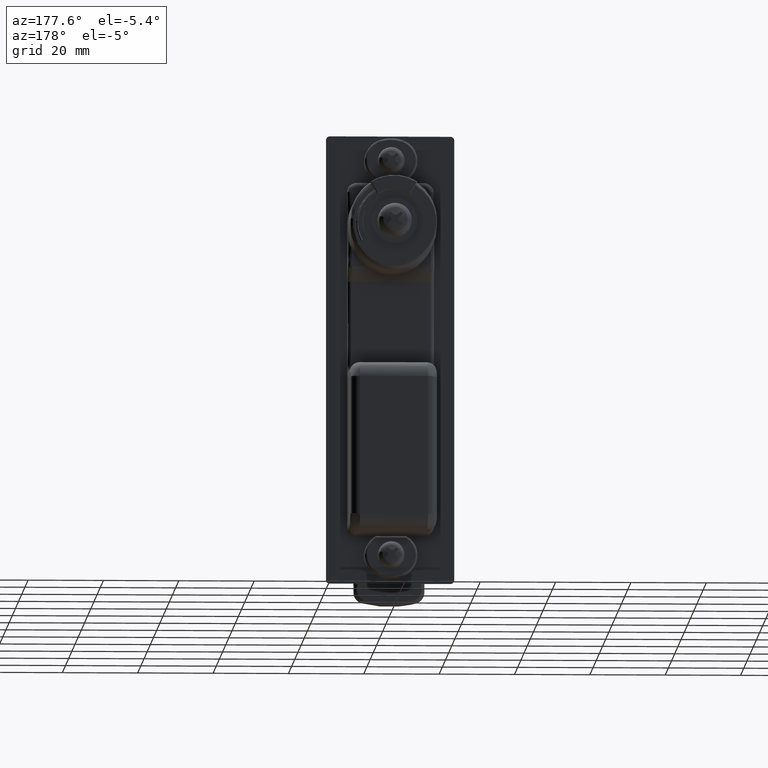
[diagram: clean part render]
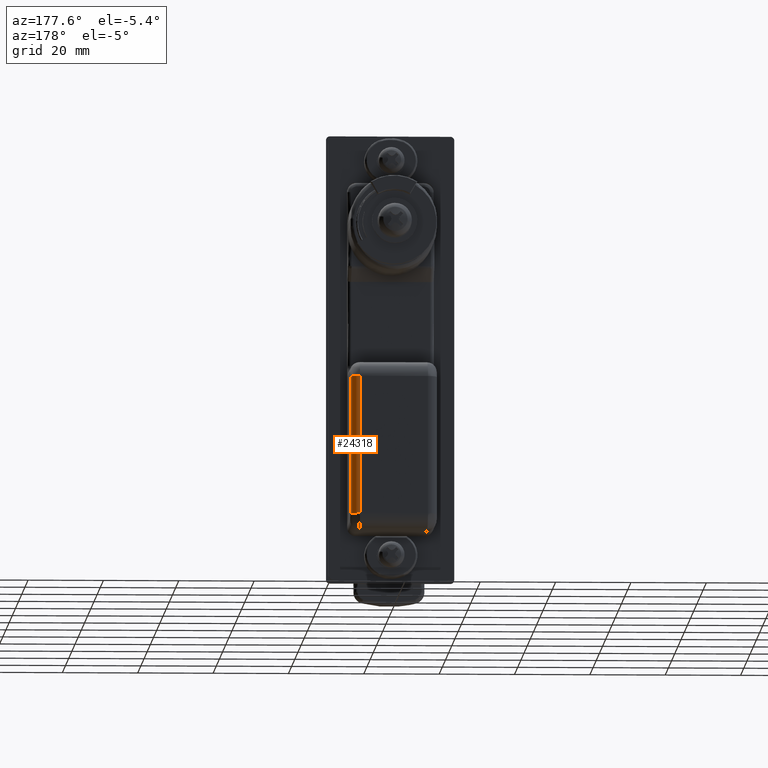
[diagram: same view with one face highlighted and labeled with its STEP entity id]
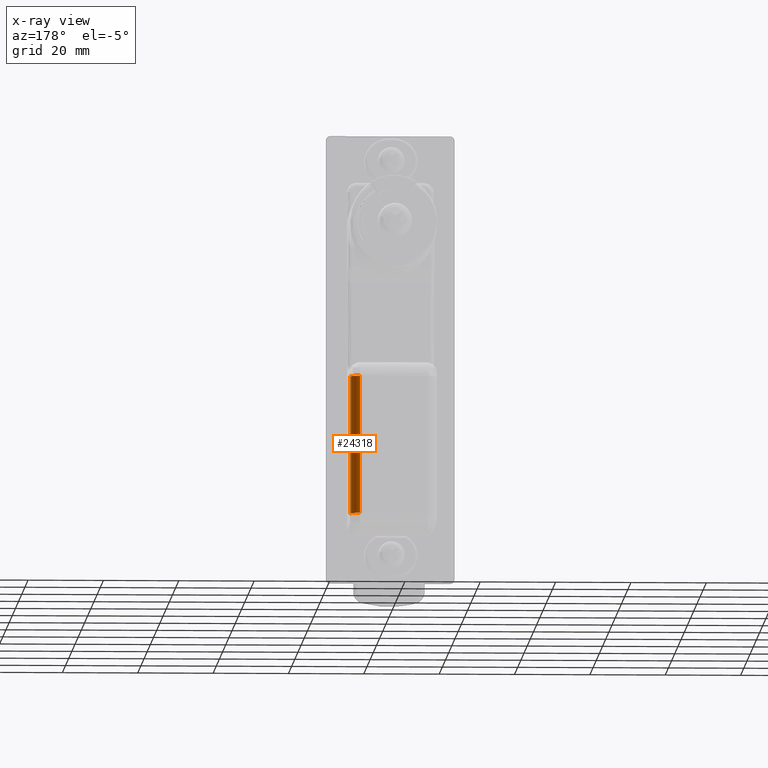
[diagram: x-ray of the same camera — body ghosted, the highlighted face saturated]
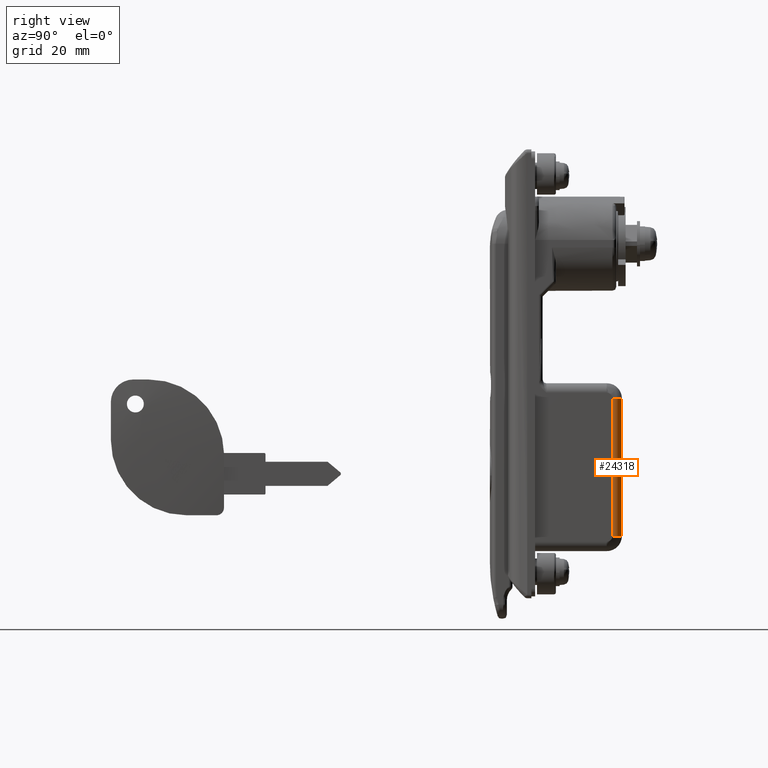
[diagram: same view with one face highlighted and labeled with its STEP entity id]
A machine part, auxiliary view. The second image highlights one B-rep face of the part: STEP entity #24318.
The next image is the same camera in x-ray: the body ghosted, the highlighted face saturated — about 0% of this face is hidden behind the body in this view.
A second angle (right view) of the same face is appended — the face is thin or edge-on in the first view.
In plain terms, the highlighted face is a freeform B-spline surface patch.
Its self-contained STEP definition (entity closure, byte-faithful):
#21319=CARTESIAN_POINT('',(9.000000000000002,30.999999999966050,-40.999999999999197));
#21320=VERTEX_POINT('',#21319);
#21505=CARTESIAN_POINT('',(9.000000000000002,30.999999999966050,-77.500000000000000));
#21506=VERTEX_POINT('',#21505);
#21507=CARTESIAN_POINT('',(9.000000000000002,30.999999999966050,-40.999999999999197));
#21508=CARTESIAN_POINT('',(9.000000000000002,30.999999999966050,-77.500000000000000));
#21509=QUASI_UNIFORM_CURVE('',1,(#21507,#21508),.UNSPECIFIED.,.F.,.U.);
#21510=EDGE_CURVE('',#21320,#21506,#21509,.T.);
#24235=CARTESIAN_POINT('',(11.500000000000000,28.499999999966050,-77.500000000000000));
#24236=VERTEX_POINT('',#24235);
#24237=CARTESIAN_POINT('',(9.000000000000002,30.999999999966050,-77.500000000000000));
#24238=CARTESIAN_POINT('',(11.500000000000002,30.999999999966054,-77.500000000000014));
#24239=CARTESIAN_POINT('',(11.500000000000000,28.499999999966050,-77.500000000000000));
#24247=(BOUNDED_CURVE()B_SPLINE_CURVE(2,(#24237,#24238,#24239),.UNSPECIFIED.,.F.,.U.)CURVE()GEOMETRIC_REPRESENTATION_ITEM()QUASI_UNIFORM_CURVE()RATIONAL_B_SPLINE_CURVE((1.0,0.707106781186548,1.0))REPRESENTATION_ITEM(''));
#24248=EDGE_CURVE('',#21506,#24236,#24247,.T.);
#24280=CARTESIAN_POINT('',(8.934557629230316,30.999143312404939,-78.412500000000037));
#24281=CARTESIAN_POINT('',(8.934557629230316,30.999143312404939,-40.064687499999181));
#24282=CARTESIAN_POINT('',(11.661893971485297,31.070561127956029,-78.412500000000037));
#24283=CARTESIAN_POINT('',(11.661893971485297,31.070561127956029,-40.064687499999188));
#24284=CARTESIAN_POINT('',(11.495336996054670,28.347378651128910,-78.412500000000037));
#24285=CARTESIAN_POINT('',(11.495336996054670,28.347378651128910,-40.064687499999181));
#24293=(BOUNDED_SURFACE()B_SPLINE_SURFACE(1,2,((#24280,#24282,#24284),(#24281,#24283,#24285)),.UNSPECIFIED.,.F.,.F.,.U.)B_SPLINE_SURFACE_WITH_KNOTS((2,2),(3,3),(0.0,38.347812500000863),(0.0,4.400105308918334),.UNSPECIFIED.)GEOMETRIC_REPRESENTATION_ITEM()RATIONAL_B_SPLINE_SURFACE(((1.0,0.675590207615660,1.0),(1.0,0.675590207615660,1.0)))REPRESENTATION_ITEM('')SURFACE());
#24294=CARTESIAN_POINT('',(11.500000000000000,28.499999999966050,-40.999999999999197));
#24295=VERTEX_POINT('',#24294);
#24296=CARTESIAN_POINT('',(9.000000000000002,30.999999999966050,-40.999999999999197));
#24297=CARTESIAN_POINT('',(11.500000000000002,30.999999999966054,-40.999999999999211));
#24298=CARTESIAN_POINT('',(11.500000000000000,28.499999999966050,-40.999999999999197));
#24306=(BOUNDED_CURVE()B_SPLINE_CURVE(2,(#24296,#24297,#24298),.UNSPECIFIED.,.F.,.U.)CURVE()GEOMETRIC_REPRESENTATION_ITEM()QUASI_UNIFORM_CURVE()RATIONAL_B_SPLINE_CURVE((1.0,0.707106781186548,1.0))REPRESENTATION_ITEM(''));
#24307=EDGE_CURVE('',#21320,#24295,#24306,.T.);
#24308=ORIENTED_EDGE('',*,*,#24307,.T.);
#24309=CARTESIAN_POINT('',(11.500000000000000,28.499999999966050,-77.500000000000000));
#24310=CARTESIAN_POINT('',(11.500000000000000,28.499999999966050,-40.999999999999197));
#24311=QUASI_UNIFORM_CURVE('',1,(#24309,#24310),.UNSPECIFIED.,.F.,.U.);
#24312=EDGE_CURVE('',#24236,#24295,#24311,.T.);
#24313=ORIENTED_EDGE('',*,*,#24312,.F.);
#24314=ORIENTED_EDGE('',*,*,#24248,.F.);
#24315=ORIENTED_EDGE('',*,*,#21510,.F.);
#24316=EDGE_LOOP('',(#24308,#24313,#24314,#24315));
#24317=FACE_OUTER_BOUND('',#24316,.T.);
#24318=ADVANCED_FACE('',(#24317),#24293,.T.);